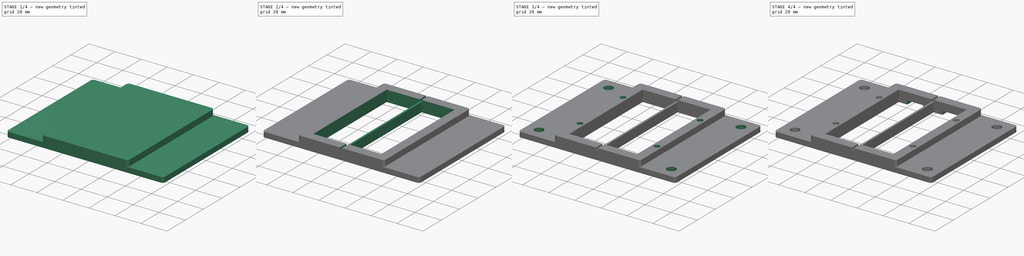
[diagram: build sequence overview — one tinted view per stage of 4, left to right]
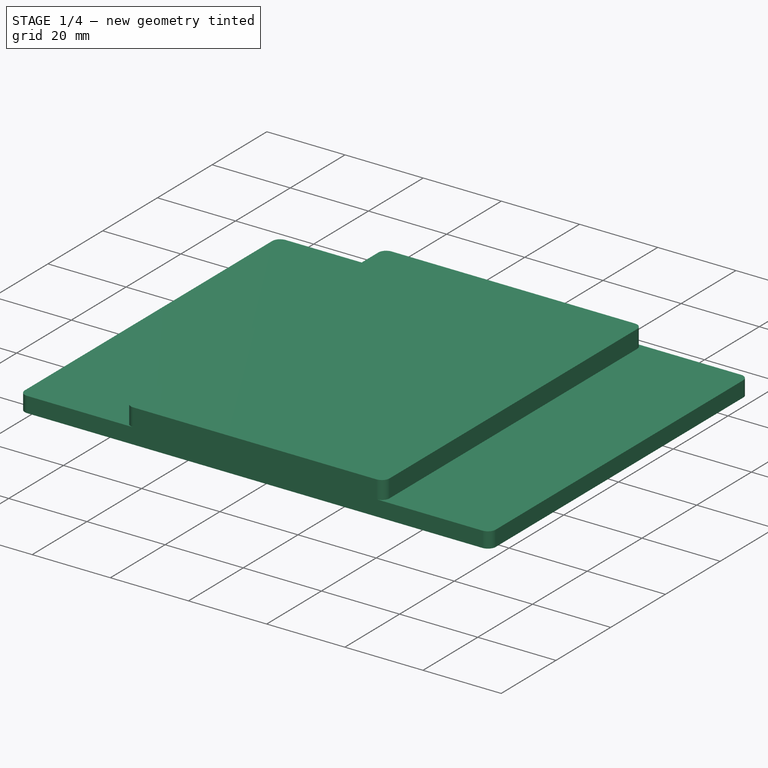
[diagram: stage 1 of 4 — iso view after this stage's code; geometry added in this stage tinted green]
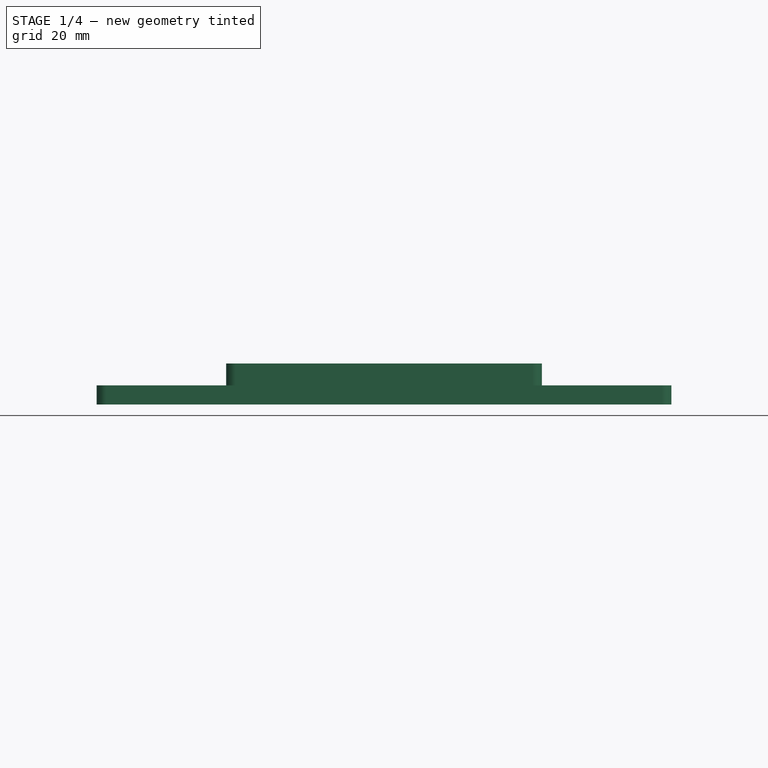
[diagram: stage 1 of 4 — front view after this stage's code; geometry added in this stage tinted green]
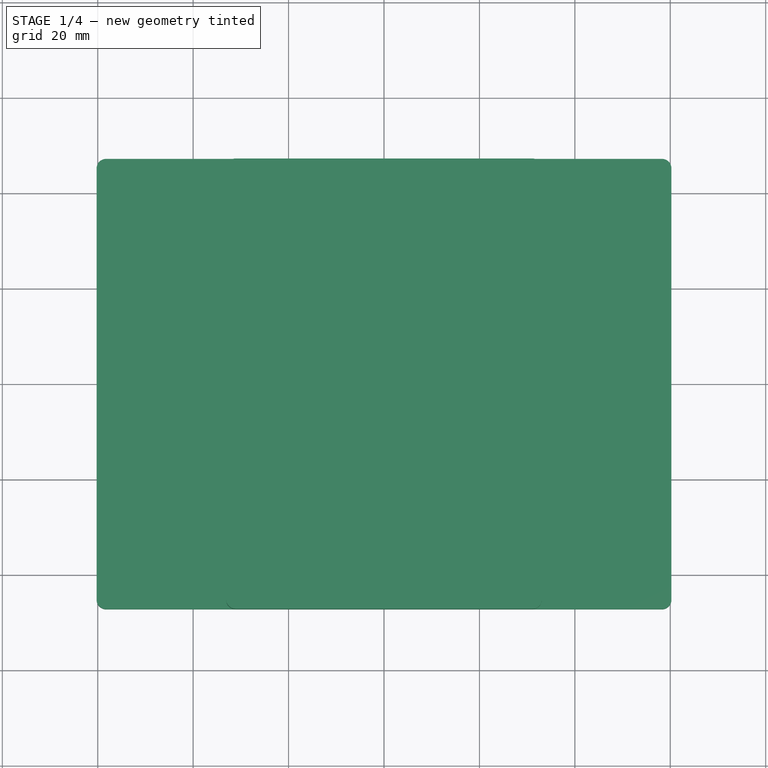
[diagram: stage 1 of 4 — top view after this stage's code; geometry added in this stage tinted green]
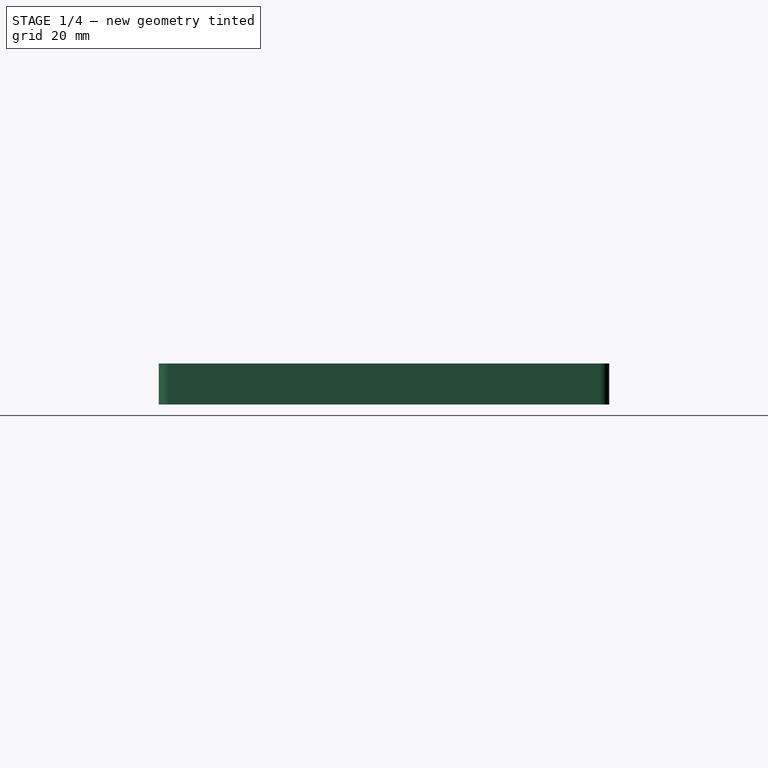
[diagram: stage 1 of 4 — right view after this stage's code; geometry added in this stage tinted green]
FCSTD DOCUMENT  (FreeCAD 1.0R39285 (Git))
Label: pupae_thermal_device_frame_v2
License: All rights reserved
LicenseURL: https://en.wikipedia.org/wiki/All_rights_reserved
objects: Sketcher::SketchObject×7, PartDesign::Pocket×5, PartDesign::Mirrored×4, PartDesign::Pad×2, PartDesign::Plane×2, Spreadsheet::Sheet×1, PartDesign::MultiTransform×1, PartDesign::Body×1
note: 48 computed .brp shape members not serialized (recipe doc carries the construction recipe); baked Part::Feature solids carry a one-line shape summary decoded from their .brp

FEATURE [Spreadsheet::Sheet] Spreadsheet
  cells = A2='Design Parameters; A3='wall_thickness; B3(wall_thickness)==7 mm; A4='floor_thickness; B4(floor_thickness)==4 mm; A6='thermal_plate_length; B6(thermal_plate_length)==80 mm; A7='thermal_plate_width; B7(thermal_plate_width)==25 mm; A8='thermal_plate_height; B8(thermal_plate_height)==5 mm; A9='thermal_plate_side_margin; B9(thermal_plate_side_margin)==0.2 mm; A10='thermal_plate_pocket_length; B10(thermal_plate_pocket_length)==thermal_plate_length + 2 * thermal_plate_side_margin; A11='thermal_plate_pocket_width; B11(thermal_plate_pocket_width)==thermal_plate_width + 2 * thermal_plate_side_margin; A12='thermal_plate_pocket_depth; B12(thermal_plate_pocket_depth)==1 * thermal_plate_height; A14='peltier_length; B14(peltier_length)==76.5 mm; A15='peltier_width; B15(peltier_width)==21 mm; A16='peltier_side_margin; B16(peltier_side_margin)==0.6 mm; A17='peltier_cable_cutout_width; B17(peltier_cable_cutout_width)==12 mm; A18='peltier_cable_cutout_height; B18(peltier_cable_cutout_height)==2.8 mm; A19='peltier_height; B19(peltier_height)==3.6 mm; A21='pupae_channel_width; B21(pupae_channel_width)==1.4 mm; A22='pupae_channel_depth; B22(pupae_channel_depth)==1.5 mm; A23='pupae_channel_pocket_depth; B23(pupae_channel_pocket_depth)==pupae_channel_depth + thermal_plate_pocket_depth - thermal_plate_height; A25='base_outside_length; B25(base_outside_length)==max(thermal_plate_pocket_length; peltier_length) + 2 * wall_thickness; A26='base_outside_width; B26(base_outside_width)==2 * wall_thickness + 2 * max(thermal_plate_pocket_width; peltier_width) + pupae_channel_width; A27='base_outside_height; B27(base_outside_height)==thermal_plate_pocket_depth + peltier_height; A28='base_outside_corner_fillet_radius; B28(base_outside_corner_fillet_radius)==2 mm; A30='thermal_plate_pocket_bottom_datum_plane_offset; B30(thermal_plate_pocket_bottom_datum_plane_offset)==base_outside_height - thermal_plate_pocket_depth; A32='front_datumplate_offset; B32(front_datumplate_offset)==0.5 * base_outside_length; A34='base_mount_screw_washer_diameter; B34(base_mount_screw_washer_diameter)==0.625 in; A35='base_mount_screw_washer_margin; B35(base_mount_screw_washer_margin)==1.5 mm; A36='base_mount_flange_hole_lengthwise_separation; B36(base_mount_flange_hole_lengthwise_separation)==3 in; A37='base_mount_flange_hole_widthwise_separation; B37(base_mount_flange_hole_widthwise_separation)==4 in; A38='base_mount_flange_width; B38(base_mount_flange_width)==max(2 * base_mount_screw_washer_diameter + 4 * base_mount_screw_washer_margin + base_outside_width; base_mount_flange_hole_widthwise_separation + base_mount_screw_washer_diameter + 2 * base_mount_screw_washer_margin); A39='base_mount_flange_length; B39(base_mount_flange_length)==base_outside_length; A40='base_mount_flange_thickness; B40(base_mount_flange_thickness)==floor_thickness; A41='base_mount_flange_fillet_radius; B41(base_mount_flange_fillet_radius)==2 mm; A43='base_mount_flange_hole_diameter; B43(base_mount_flange_hole_diameter)==0.266 in; A45='top_mount_hole_insert_diameter; B45(top_mount_hole_insert_diameter)==0.165 in; A46='top_mount_hole_insert_depth; B46(top_mount_hole_insert_depth)==7 mm
FEATURE [Sketcher::SketchObject] Sketch  label="BaseSketch"
  ArcFitTolerance = 1e-06
  AttachmentSupport = -> [XY_Plane]
  FullyConstrained = true
  MakeInternals = false
  MapMode = 5
  expr: Constraints[19] = Spreadsheet.base_outside_corner_fillet_radius
  expr: Constraints[21] = Spreadsheet.base_outside_length
  expr: Constraints[22] = Spreadsheet.base_outside_width
  sketch-geometry (10):
    g0: LineSegment StartX=-33.1 StartY=45.2 StartZ=0 EndX=-33.1 EndY=-45.2 EndZ=0
    g1: LineSegment StartX=-31.1 StartY=-47.2 StartZ=0 EndX=31.1 EndY=-47.2 EndZ=0
    g2: LineSegment StartX=33.1 StartY=-45.2 StartZ=0 EndX=33.1 EndY=45.2 EndZ=0
    g3: LineSegment StartX=31.1 StartY=47.2 StartZ=0 EndX=-31.1 EndY=47.2 EndZ=0
    g4: ArcOfCircle CenterX=-31.1 CenterY=45.2 CenterZ=0 NormalX=0 NormalY=0 NormalZ=1 AngleXU=0 Radius=2 StartAngle=1.5708 EndAngle=3.14159
    g5: ArcOfCircle CenterX=-31.1 CenterY=-45.2 CenterZ=0 NormalX=0 NormalY=0 NormalZ=1 AngleXU=0 Radius=2 StartAngle=3.14159 EndAngle=4.71239
    g6: ArcOfCircle CenterX=31.1 CenterY=-45.2 CenterZ=0 NormalX=0 NormalY=0 NormalZ=1 AngleXU=0 Radius=2 StartAngle=4.71239 EndAngle=6.28319
    g7: ArcOfCircle CenterX=31.1 CenterY=45.2 CenterZ=0 NormalX=0 NormalY=0 NormalZ=1 AngleXU=0 Radius=2 StartAngle=4e-16 EndAngle=1.5708
    g8: GeomPoint [constr] X=-33.1 Y=47.2 Z=0
    g9: GeomPoint [constr] X=33.1 Y=-47.2 Z=0
  constraints (23):
    c: Tangent(g0,g4) = -1.5708
    c: Tangent(g0,g5) = -1.5708
    c: Tangent(g1,g5) = -1.5708
    c: Tangent(g1,g6) = -1.5708
    c: Tangent(g2,g6) = -1.5708
    c: Tangent(g2,g7) = -1.5708
    c: Tangent(g3,g7) = -1.5708
    c: Tangent(g3,g4) = -1.5708
    c: Vertical(g0)
    c: Vertical(g2)
    c: Horizontal(g1)
    c: Horizontal(g3)
    c: Equal(g4,g5)
    c: Equal(g5,g6)
    c: Equal(g6,g7)
    c: PointOnObject(g8,g0)
    c: PointOnObject(g8,g3)
    c: PointOnObject(g9,g1)
    c: PointOnObject(g9,g2)
    c: Radius(g5) = 2
    c: Symmetric(g4,g6,g-1)
    c: DistanceY(g1,g3) = 94.4
    c: DistanceX(g0,g2) = 66.2
FEATURE [PartDesign::Pad] Pad  label="BasePad"
  Direction = (0,0,1)
  Length = 8.6
  Length2 = 10
  Profile = -> Sketch
  ReferenceAxis = -> Sketch [N_Axis]
  Refine = true
  Suppressed = false
  Type = 0
  expr: Length = Spreadsheet.base_outside_height
FEATURE [PartDesign::Plane] DatumPlane  label="TopDatumPlane"
  AttachmentOffset = pos=(0,0,8.6) rot=(0,0,1;0rad)
  AttachmentSupport = -> [XY_Plane]
  Length = 141.804
  MapMode = 5
  Placement = pos=(0,0,8.6) rot=(0,0,1;0rad)
  ResizeMode = 0
  Width = 115.729
  expr: .AttachmentOffset.Base.z = Spreadsheet.base_outside_height
FEATURE [Sketcher::SketchObject] Sketch002  label="PupaeChannelSketch"
  ArcFitTolerance = 1e-06
  AttachmentSupport = -> [DatumPlane]
  FullyConstrained = true
  MakeInternals = false
  MapMode = 5
  Placement = pos=(0,0,8.6) rot=(0,0,1;0rad)
  expr: Constraints[10] = Spreadsheet.pupae_channel_width
  expr: Constraints[11] = Spreadsheet.base_outside_length
  sketch-geometry (5):
    g0: LineSegment StartX=-0.7 StartY=47.2 StartZ=0 EndX=-0.7 EndY=-47.2 EndZ=0
    g1: LineSegment StartX=-0.7 StartY=-47.2 StartZ=0 EndX=0.7 EndY=-47.2 EndZ=0
    g2: LineSegment StartX=0.7 StartY=-47.2 StartZ=0 EndX=0.7 EndY=47.2 EndZ=0
    g3: LineSegment StartX=0.7 StartY=47.2 StartZ=0 EndX=-0.7 EndY=47.2 EndZ=0
    g4: GeomPoint [constr] X=0 Y=0 Z=0
  constraints (12):
    c: Coincident(g0,g1)
    c: Coincident(g1,g2)
    c: Coincident(g2,g3)
    c: Coincident(g3,g0)
    c: Vertical(g0)
    c: Vertical(g2)
    c: Horizontal(g1)
    c: Horizontal(g3)
    c: Symmetric(g2,g0,g4)
    c: Coincident(g4,g-1)
    c: DistanceX(g1,g1) = 1.4
    c: DistanceY(g2,g2) = 94.4
FEATURE [Sketcher::SketchObject] Sketch003  label="ThermalPlatePocketSketch"
  ArcFitTolerance = 1e-06
  AttachmentSupport = -> [DatumPlane]
  FullyConstrained = true
  MakeInternals = false
  MapMode = 5
  Placement = pos=(0,0,8.6) rot=(0,0,1;0rad)
  expr: Constraints[12] = Spreadsheet.thermal_plate_pocket_width
  expr: Constraints[13] = Spreadsheet.thermal_plate_pocket_length
  expr: Constraints[2] = Spreadsheet.pupae_channel_width
  sketch-geometry (5):
    g0: LineSegment [constr] StartX=-0.7 StartY=0 StartZ=0 EndX=0.7 EndY=0 EndZ=0
    g1: LineSegment StartX=-26.1 StartY=40.2 StartZ=0 EndX=-26.1 EndY=-40.2 EndZ=0
    g2: LineSegment StartX=-26.1 StartY=-40.2 StartZ=0 EndX=-0.7 EndY=-40.2 EndZ=0
    g3: LineSegment StartX=-0.7 StartY=-40.2 StartZ=0 EndX=-0.7 EndY=40.2 EndZ=0
    g4: LineSegment StartX=-0.7 StartY=40.2 StartZ=0 EndX=-26.1 EndY=40.2 EndZ=0
  constraints (14):
    c: Symmetric(g0,g0,g-1)
    c: Horizontal(g0)
    c: Distance(g0,g0) = 1.4
    c: Coincident(g1,g2)
    c: Coincident(g2,g3)
    c: Coincident(g3,g4)
    c: Coincident(g4,g1)
    c: Vertical(g1)
    c: Vertical(g3)
    c: Horizontal(g2)
    c: Horizontal(g4)
    c: Symmetric(g3,g2,g0)
    c: Distance(g4,g4) = 25.4
    c: DistanceY(g1,g1) = 80.4
FEATURE [PartDesign::Plane] DatumPlane001  label="ThermPlatePocketBottomDatumPlane"
  AttachmentOffset = pos=(0,0,3.6) rot=(0,0,1;0rad)
  AttachmentSupport = -> [XY_Plane]
  Length = 141.804
  MapMode = 5
  Placement = pos=(0,0,3.6) rot=(0,0,1;0rad)
  ResizeMode = 0
  Width = 115.729
  expr: .AttachmentOffset.Base.z = Spreadsheet.thermal_plate_pocket_bottom_datum_plane_offset
FEATURE [Sketcher::SketchObject] Sketch007  label="BaseMountFlangeSketch"
  ArcFitTolerance = 1e-06
  AttachmentSupport = -> [XY_Plane]
  FullyConstrained = true
  MakeInternals = false
  MapMode = 5
  expr: Constraints[19] = Spreadsheet.base_mount_flange_fillet_radius
  expr: Constraints[20] = Spreadsheet.base_mount_flange_width
  expr: Constraints[21] = Spreadsheet.base_mount_flange_length
  sketch-geometry (10):
    g0: LineSegment StartX=-60.2375 StartY=45.2 StartZ=0 EndX=-60.2375 EndY=-45.2 EndZ=0
    g1: LineSegment StartX=-58.2375 StartY=-47.2 StartZ=0 EndX=58.2375 EndY=-47.2 EndZ=0
    g2: LineSegment StartX=60.2375 StartY=-45.2 StartZ=0 EndX=60.2375 EndY=45.2 EndZ=0
    g3: LineSegment StartX=58.2375 StartY=47.2 StartZ=0 EndX=-58.2375 EndY=47.2 EndZ=0
    g4: ArcOfCircle CenterX=-58.2375 CenterY=45.2 CenterZ=0 NormalX=0 NormalY=0 NormalZ=1 AngleXU=0 Radius=2 StartAngle=1.5708 EndAngle=3.14159
    g5: ArcOfCircle CenterX=-58.2375 CenterY=-45.2 CenterZ=0 NormalX=0 NormalY=0 NormalZ=1 AngleXU=0 Radius=2 StartAngle=3.14159 EndAngle=4.71239
    g6: ArcOfCircle CenterX=58.2375 CenterY=-45.2 CenterZ=0 NormalX=0 NormalY=0 NormalZ=1 AngleXU=0 Radius=2 StartAngle=4.71239 EndAngle=6.28319
    g7: ArcOfCircle CenterX=58.2375 CenterY=45.2 CenterZ=0 NormalX=0 NormalY=0 NormalZ=1 AngleXU=0 Radius=2 StartAngle=-9e-16 EndAngle=1.5708
    g8: GeomPoint [constr] X=-60.2375 Y=47.2 Z=0
    g9: GeomPoint [constr] X=60.2375 Y=-47.2 Z=0
  constraints (23):
    c: Tangent(g0,g4) = -1.5708
    c: Tangent(g0,g5) = -1.5708
    c: Tangent(g1,g5) = -1.5708
    c: Tangent(g1,g6) = -1.5708
    c: Tangent(g2,g6) = -1.5708
    c: Tangent(g2,g7) = -1.5708
    c: Tangent(g3,g7) = -1.5708
    c: Tangent(g3,g4) = -1.5708
    c: Vertical(g0)
    c: Vertical(g2)
    c: Horizontal(g1)
    c: Horizontal(g3)
    c: Equal(g4,g5)
    c: Equal(g5,g6)
    c: Equal(g6,g7)
    c: PointOnObject(g8,g0)
    c: PointOnObject(g8,g3)
    c: PointOnObject(g9,g1)
    c: PointOnObject(g9,g2)
    c: Radius(g5) = 2
    c: DistanceX(g0,g2) = 120.475
    c: DistanceY(g1,g3) = 94.4
    c: Symmetric(g4,g6,g-1)
FEATURE [PartDesign::Pad] Pad001  label="BaseMountFlangePad"
  BaseFeature = -> Pad
  Direction = (0,0,1)
  Length = 4
  Length2 = 10
  Profile = -> Sketch007
  ReferenceAxis = -> Sketch007 [N_Axis]
  Refine = true
  Suppressed = false
  Type = 0
  expr: Length = Spreadsheet.base_mount_flange_thickness
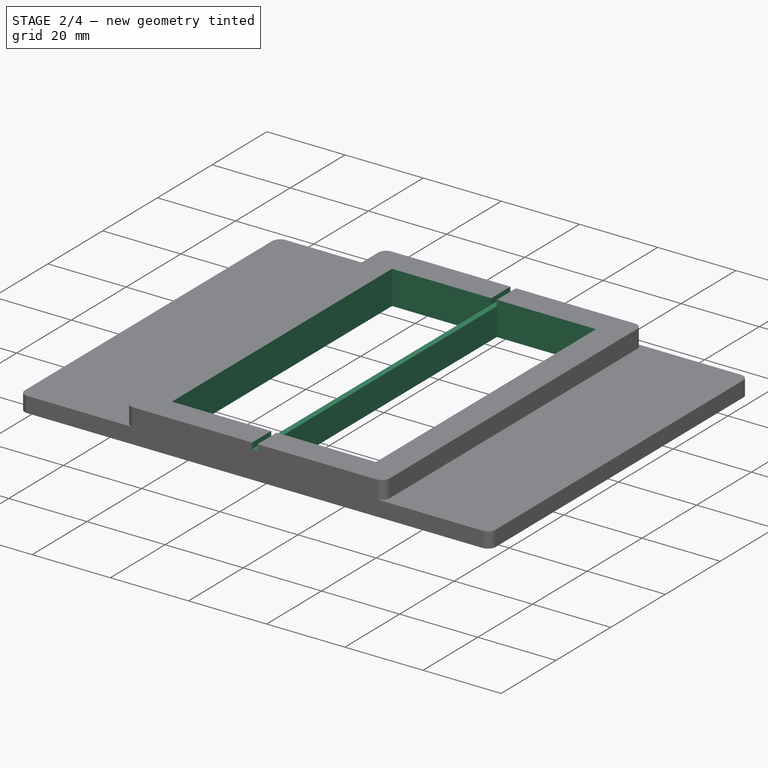
[diagram: stage 2 of 4 — iso view after this stage's code; geometry added in this stage tinted green]
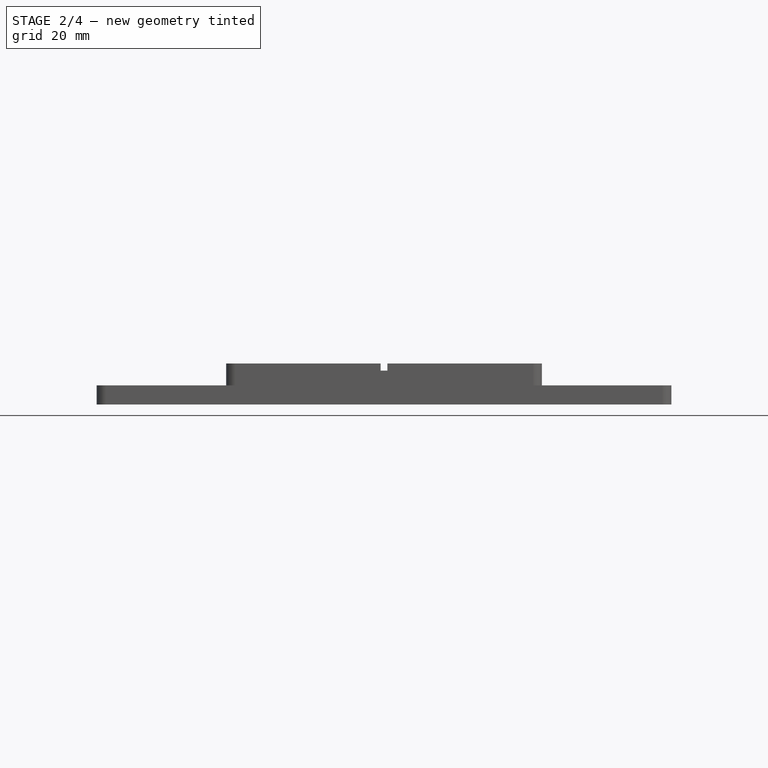
[diagram: stage 2 of 4 — front view after this stage's code; geometry added in this stage tinted green]
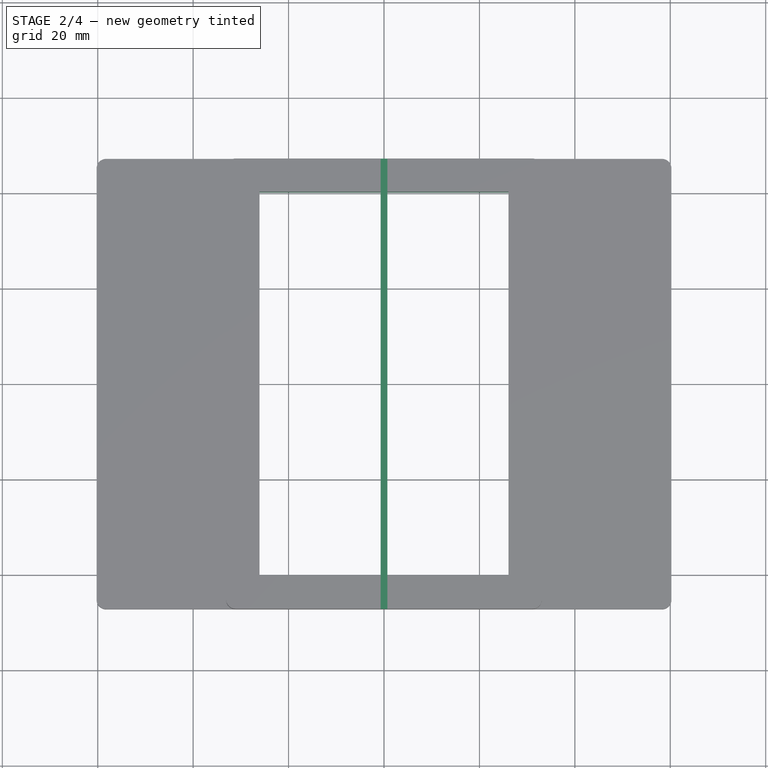
[diagram: stage 2 of 4 — top view after this stage's code; geometry added in this stage tinted green]
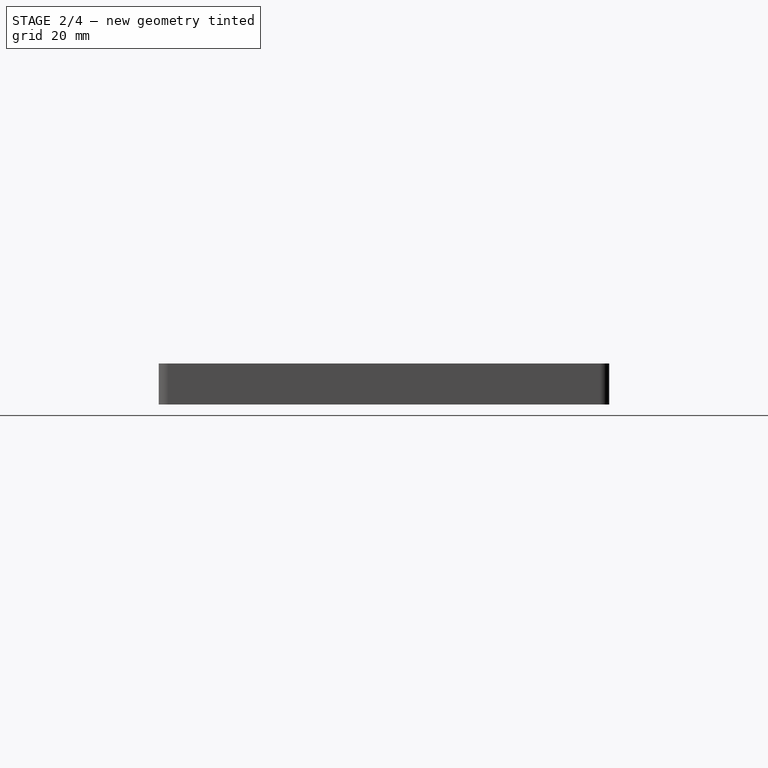
[diagram: stage 2 of 4 — right view after this stage's code; geometry added in this stage tinted green]
FEATURE [PartDesign::Pocket] Pocket001  label="PupaeChannelPocket"
  BaseFeature = -> Pad001
  Direction = (0,0,-1)
  Length = 1.5
  Length2 = 5
  Profile = -> Sketch002
  ReferenceAxis = -> Sketch002 [N_Axis]
  Refine = true
  Suppressed = false
  Type = 0
  expr: Length = Spreadsheet.pupae_channel_pocket_depth
FEATURE [PartDesign::Pocket] Pocket  label="ThermalPlatePocket"
  BaseFeature = -> Pocket001
  Direction = (0,0,-1)
  Length = 8.6
  Length2 = 5
  Profile = -> Sketch003
  ReferenceAxis = -> Sketch003 [N_Axis]
  Refine = true
  Suppressed = false
  Type = 0
  expr: Length = Spreadsheet.base_outside_height
FEATURE [PartDesign::Mirrored] Mirrored  label="ThermalPlatePocketMirrored"
  BaseFeature = -> Pocket
  MirrorPlane = -> Sketch003 [V_Axis]
  Originals = -> [Pocket]
  Refine = true
  Suppressed = false
  TransformMode = 0
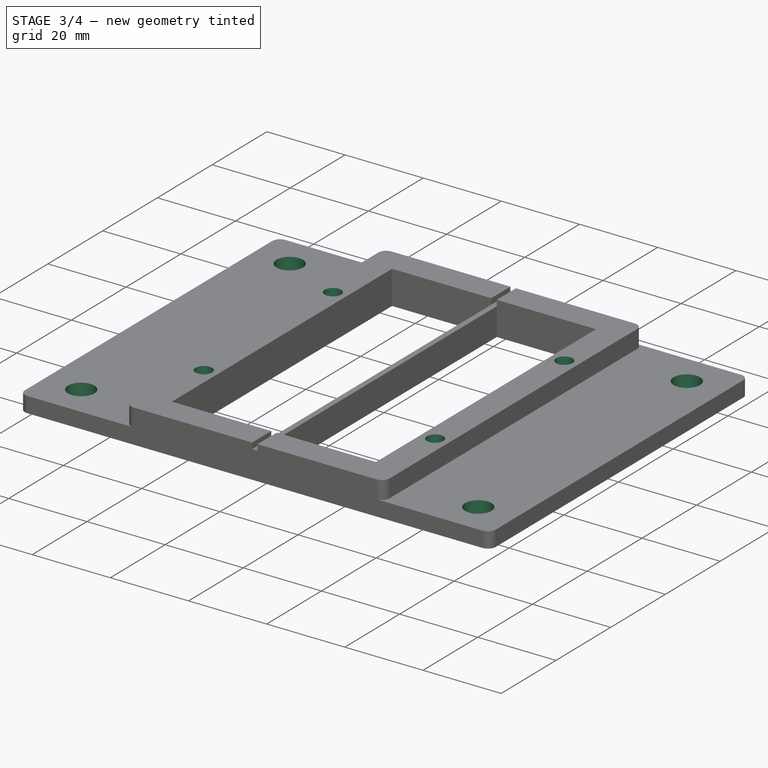
[diagram: stage 3 of 4 — iso view after this stage's code; geometry added in this stage tinted green]
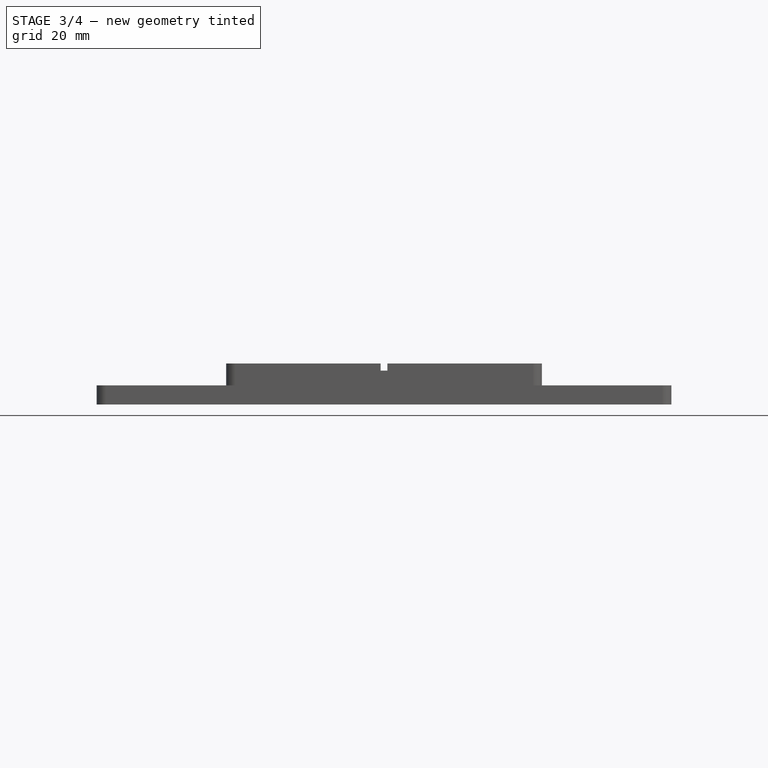
[diagram: stage 3 of 4 — front view after this stage's code; geometry added in this stage tinted green]
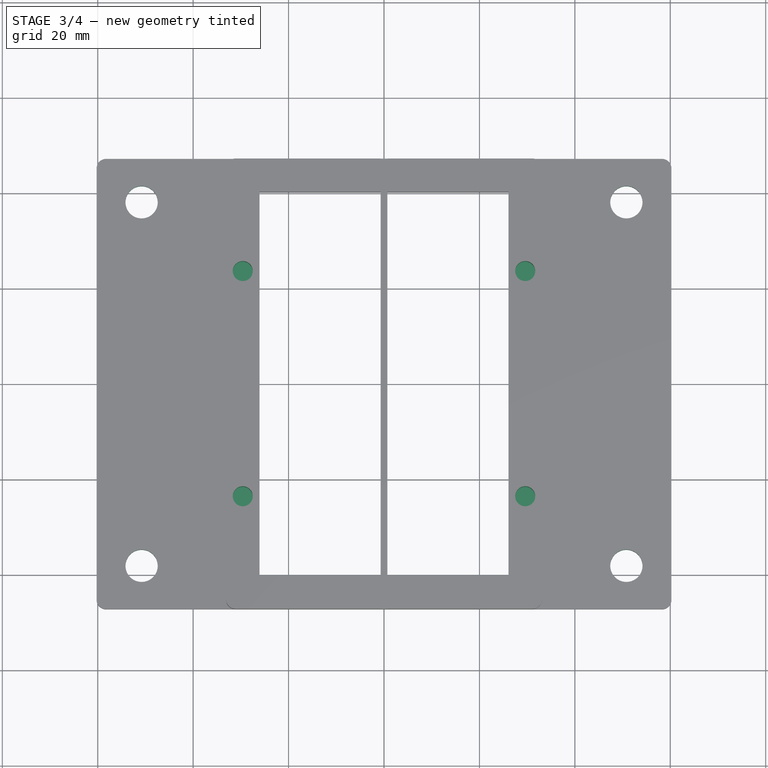
[diagram: stage 3 of 4 — top view after this stage's code; geometry added in this stage tinted green]
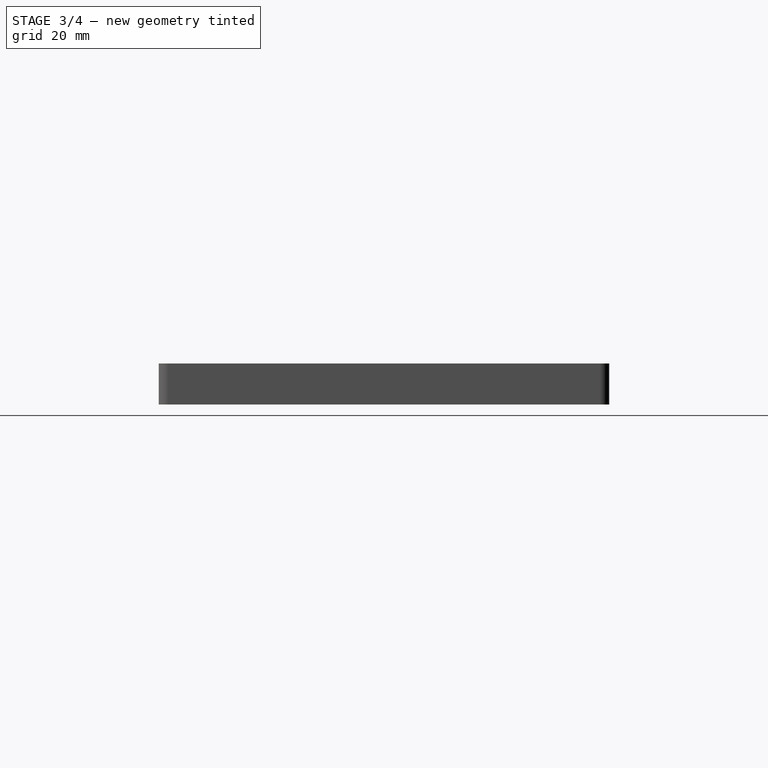
[diagram: stage 3 of 4 — right view after this stage's code; geometry added in this stage tinted green]
FEATURE [Sketcher::SketchObject] Sketch008  label="TopMountHoleSketch"
  ArcFitTolerance = 1e-06
  AttachmentSupport = -> [DatumPlane]
  FullyConstrained = true
  MakeInternals = false
  MapMode = 5
  Placement = pos=(0,0,8.6) rot=(0,0,1;0rad)
  expr: Constraints[18] = Spreadsheet.wall_thickness
  expr: Constraints[32] = Spreadsheet.top_mount_hole_insert_diameter
  expr: Constraints[3] = Spreadsheet.base_outside_length
  expr: Constraints[5] = Spreadsheet.base_outside_width
  expr: Constraints[9] = Spreadsheet.wall_thickness
  sketch-geometry (17):
    g0: LineSegment [constr] StartX=-33.1 StartY=47.2 StartZ=0 EndX=33.1 EndY=47.2 EndZ=0
    g1: LineSegment [constr] StartX=0 StartY=47.2 StartZ=0 EndX=0 EndY=-47.2 EndZ=0
    g2: GeomPoint [constr] X=-16.55 Y=47.2 Z=0
    g3: LineSegment [constr] StartX=-16.55 StartY=47.2 StartZ=0 EndX=-16.55 EndY=40.2 EndZ=0
    g4: GeomPoint [constr] X=-16.55 Y=43.7 Z=0
    g5: LineSegment [constr] StartX=-33.1 StartY=47.2 StartZ=0 EndX=-33.1 EndY=-47.2 EndZ=0
    g6: GeomPoint [constr] X=-33.1 Y=-4e-16 Z=0
    g7: GeomPoint [constr] X=-33.1 Y=23.6 Z=0
    g8: LineSegment [constr] StartX=-33.1 StartY=23.6 StartZ=0 EndX=-26.1 EndY=23.6 EndZ=0
    g9: GeomPoint [constr] X=-29.6 Y=23.6 Z=0
    g10: Circle CenterX=-29.6 CenterY=23.6 CenterZ=0 NormalX=0 NormalY=0 NormalZ=1 AngleXU=0 Radius=2.0955
    g11: GeomPoint X=-24.825 Y=47.2 Z=0
    g12: LineSegment [constr] StartX=-24.825 StartY=47.2 StartZ=0 EndX=-24.825 EndY=40.2 EndZ=0
    g13: GeomPoint [constr] X=-24.825 Y=43.7 Z=0
    g14: GeomPoint [constr] X=-6.498 Y=47.2 Z=0
    g15: LineSegment [constr] StartX=-6.498 StartY=47.2 StartZ=0 EndX=-6.498 EndY=40.2 EndZ=0
    g16: GeomPoint [constr] X=-6.498 Y=43.7 Z=0
  constraints (33):
    c: Horizontal(g0)
    c: Vertical(g1)
    c: Symmetric(g1,g1,g-1)
    c: DistanceY(g1,g1) = 94.4
    c: Symmetric(g0,g0,g1)
    c: DistanceX(g0,g0) = 66.2
    c: Symmetric(g0,g1,g2)
    c: Coincident(g3,g2)
    c: Vertical(g3)
    c: Distance(g3,g3) = 7
    c: Symmetric(g3,g2,g4)
    c: Vertical(g5)
    c: Coincident(g5,g0)
    c: Equal(g5,g1)
    c: Symmetric(g0,g5,g6)
    c: Symmetric(g0,g6,g7)
    c: Coincident(g8,g7)
    c: Horizontal(g8)
    c: Distance(g8,g8) = 7
    c: Symmetric(g7,g8,g9)
    c: Coincident(g10,g9)
    c: Symmetric(g0,g2,g11)
    c: Coincident(g12,g11)
    c: Vertical(g12)
    c: Equal(g12,g3)
    c: Symmetric(g11,g12,g13)
    c: Coincident(g15,g14)
    c: Vertical(g15)
    c: Equal(g3,g15)
    c: Symmetric(g14,g15,g16)
    c: PointOnObject(g14,g0)
    c: Distance(g14,g1) = 6.498
    c: Diameter(g10) = 4.191
FEATURE [PartDesign::Mirrored] Mirrored004
  MirrorPlane = -> YZ_Plane
  Refine = true
  Suppressed = false
  TransformMode = 0
FEATURE [PartDesign::Mirrored] Mirrored005
  MirrorPlane = -> XZ_Plane
  Refine = true
  Suppressed = false
  TransformMode = 0
FEATURE [Sketcher::SketchObject] Sketch009  label="BaseFlangeMountHoleSketch"
  ArcFitTolerance = 1e-06
  AttachmentSupport = -> [XY_Plane]
  FullyConstrained = true
  MakeInternals = false
  MapMode = 5
  expr: Constraints[10] = Spreadsheet.base_mount_flange_hole_widthwise_separation
  expr: Constraints[11] = Spreadsheet.base_mount_flange_hole_lengthwise_separation
  expr: Constraints[19] = Spreadsheet.base_mount_flange_hole_diameter
  sketch-geometry (9):
    g0: LineSegment [constr] StartX=-50.8 StartY=38.1 StartZ=0 EndX=-50.8 EndY=-38.1 EndZ=0
    g1: LineSegment [constr] StartX=-50.8 StartY=-38.1 StartZ=0 EndX=50.8 EndY=-38.1 EndZ=0
    g2: LineSegment [constr] StartX=50.8 StartY=-38.1 StartZ=0 EndX=50.8 EndY=38.1 EndZ=0
    g3: LineSegment [constr] StartX=50.8 StartY=38.1 StartZ=0 EndX=-50.8 EndY=38.1 EndZ=0
    g4: GeomPoint [constr] X=0 Y=0 Z=0
    g5: Circle CenterX=-50.8 CenterY=38.1 CenterZ=0 NormalX=0 NormalY=0 NormalZ=1 AngleXU=0 Radius=3.3782
    g6: Circle CenterX=50.8 CenterY=38.1 CenterZ=0 NormalX=0 NormalY=0 NormalZ=1 AngleXU=0 Radius=3.3782
    g7: Circle CenterX=-50.8 CenterY=-38.1 CenterZ=0 NormalX=0 NormalY=0 NormalZ=1 AngleXU=0 Radius=3.3782
    g8: Circle CenterX=50.8 CenterY=-38.1 CenterZ=0 NormalX=0 NormalY=0 NormalZ=1 AngleXU=0 Radius=3.3782
  constraints (20):
    c: Coincident(g0,g1)
    c: Coincident(g1,g2)
    c: Coincident(g2,g3)
    c: Coincident(g3,g0)
    c: Vertical(g0)
    c: Vertical(g2)
    c: Horizontal(g1)
    c: Horizontal(g3)
    c: Symmetric(g2,g0,g4)
    c: Coincident(g4,g-1)
    c: DistanceX(g3,g3) = 101.6
    c: DistanceY(g2,g2) = 76.2
    c: Coincident(g5,g0)
    c: Coincident(g6,g2)
    c: Coincident(g7,g0)
    c: Coincident(g8,g1)
    c: Equal(g5,g7)
    c: Equal(g7,g6)
    c: Equal(g6,g8)
    c: Diameter(g5) = 6.7564
FEATURE [Sketcher::SketchObject] Sketch010  label="CableCutoutSketch"
  ArcFitTolerance = 1e-06
  AttachmentSupport = -> [XY_Plane]
  FullyConstrained = true
  MakeInternals = false
  MapMode = 5
  expr: Constraints[12] = Spreadsheet.pupae_channel_width
  expr: Constraints[13] = Spreadsheet.thermal_plate_pocket_length
  expr: Constraints[14] = Spreadsheet.thermal_plate_pocket_width
  expr: Constraints[25] = Spreadsheet.base_mount_flange_width
  expr: Constraints[26] = Spreadsheet.base_mount_flange_length
  expr: Constraints[37] = Spreadsheet.peltier_cable_cutout_width
  sketch-geometry (17):
    g0: LineSegment [constr] StartX=-0.7 StartY=0 StartZ=0 EndX=0.7 EndY=0 EndZ=0
    g1: LineSegment [constr] StartX=-26.1 StartY=40.2 StartZ=0 EndX=-26.1 EndY=-40.2 EndZ=0
    g2: LineSegment [constr] StartX=-26.1 StartY=-40.2 StartZ=0 EndX=-0.7 EndY=-40.2 EndZ=0
    g3: LineSegment [constr] StartX=-0.7 StartY=-40.2 StartZ=0 EndX=-0.7 EndY=40.2 EndZ=0
    g4: LineSegment [constr] StartX=-0.7 StartY=40.2 StartZ=0 EndX=-26.1 EndY=40.2 EndZ=0
    g5: GeomPoint [constr] X=-13.4 Y=3e-16 Z=0
    g6: LineSegment [constr] StartX=-60.2375 StartY=47.2 StartZ=0 EndX=-60.2375 EndY=-47.2 EndZ=0
    g7: LineSegment [constr] StartX=-60.2375 StartY=-47.2 StartZ=0 EndX=60.2375 EndY=-47.2 EndZ=0
    g8: LineSegment [constr] StartX=60.2375 StartY=-47.2 StartZ=0 EndX=60.2375 EndY=47.2 EndZ=0
    g9: LineSegment [constr] StartX=60.2375 StartY=47.2 StartZ=0 EndX=-60.2375 EndY=47.2 EndZ=0
    g10: GeomPoint [constr] X=0 Y=0 Z=0
    g11: GeomPoint [constr] X=-13.4 Y=3e-16 Z=0
    g12: LineSegment StartX=-19.4 StartY=47.2 StartZ=0 EndX=-19.4 EndY=40.2 EndZ=0
    g13: LineSegment StartX=-19.4 StartY=40.2 StartZ=0 EndX=-7.4 EndY=40.2 EndZ=0
    g14: LineSegment StartX=-7.4 StartY=40.2 StartZ=0 EndX=-7.4 EndY=47.2 EndZ=0
    g15: LineSegment StartX=-7.4 StartY=47.2 StartZ=0 EndX=-19.4 EndY=47.2 EndZ=0
    g16: GeomPoint X=-13.4 Y=40.2 Z=0
  constraints (40):
    c: Horizontal(g0)
    c: Symmetric(g0,g0,g-1)
    c: Coincident(g1,g2)
    c: Coincident(g2,g3)
    c: Coincident(g3,g4)
    c: Coincident(g4,g1)
    c: Vertical(g1)
    c: Vertical(g3)
    c: Horizontal(g2)
    c: Horizontal(g4)
    c: Symmetric(g3,g1,g5)
    c: Symmetric(g3,g2,g0)
    c: Distance(g0,g0) = 1.4
    c: DistanceY(g1,g1) = 80.4
    c: DistanceX(g4,g4) = 25.4
    c: Coincident(g6,g7)
    c: Coincident(g7,g8)
    c: Coincident(g8,g9)
    c: Coincident(g9,g6)
    c: Vertical(g6)
    c: Vertical(g8)
    c: Horizontal(g7)
    c: Horizontal(g9)
    c: Symmetric(g8,g6,g10)
    c: Coincident(g10,g-1)
    c: DistanceX(g9,g9) = 120.475
    c: DistanceY(g8,g8) = 94.4
    c: Coincident(g11,g5)
    c: Coincident(g12,g13)
    c: Coincident(g13,g14)
    c: Coincident(g14,g15)
    c: Coincident(g15,g12)
    c: Vertical(g12)
    c: Vertical(g14)
    c: Horizontal(g13)
    c: Horizontal(g15)
    c: PointOnObject(g14,g9)
    c: DistanceX(g15,g15) = 12
    c: Symmetric(g1,g3,g16)
    c: Symmetric(g12,g13,g16)
FEATURE [PartDesign::Pocket] Pocket008  label="BaseFlangeMountHolePocketPocket008"
  BaseFeature = -> Mirrored
  Direction = (0,0,-1)
  Length = 5
  Length2 = 5
  Profile = -> Sketch009
  ReferenceAxis = -> Sketch009 [N_Axis]
  Refine = true
  Reversed = true
  Suppressed = false
  Type = 1
FEATURE [PartDesign::Pocket] Pocket005  label="TopMountHolePocket"
  BaseFeature = -> Pocket008
  Direction = (0,0,-1)
  Length = 7
  Length2 = 5
  Profile = -> Sketch008
  ReferenceAxis = -> Sketch008 [N_Axis]
  Refine = true
  Suppressed = false
  Type = 0
  expr: Length = Spreadsheet.top_mount_hole_insert_depth
FEATURE [PartDesign::MultiTransform] MultiTransform  label="TopMountHoleMultiTransform"
  BaseFeature = -> Pocket005
  Originals = -> [Pocket005]
  Refine = true
  Suppressed = false
  TransformMode = 0
  Transformations = -> [Mirrored004,Mirrored005]
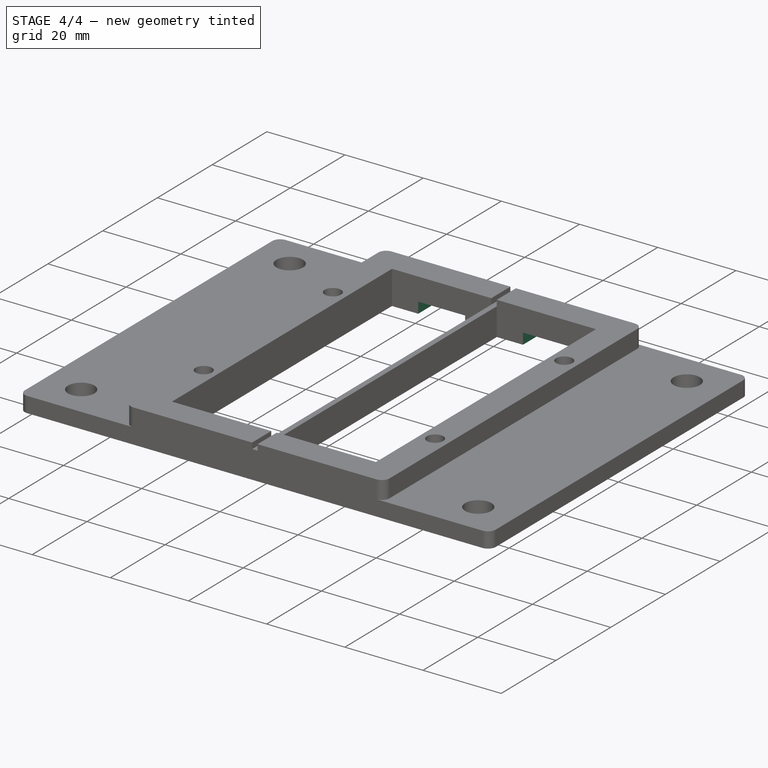
[diagram: stage 4 of 4 — iso view after this stage's code; geometry added in this stage tinted green]
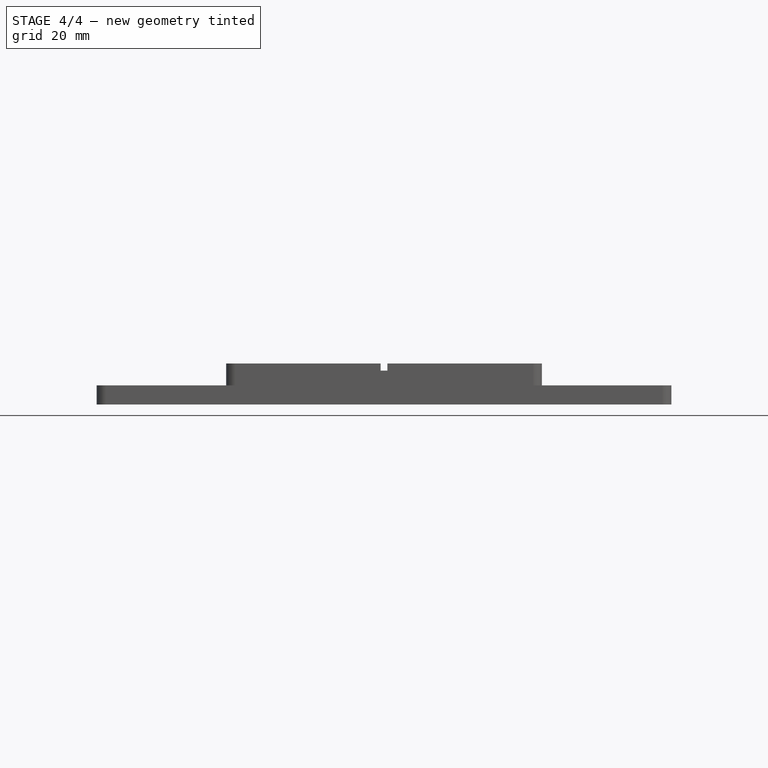
[diagram: stage 4 of 4 — front view after this stage's code; geometry added in this stage tinted green]
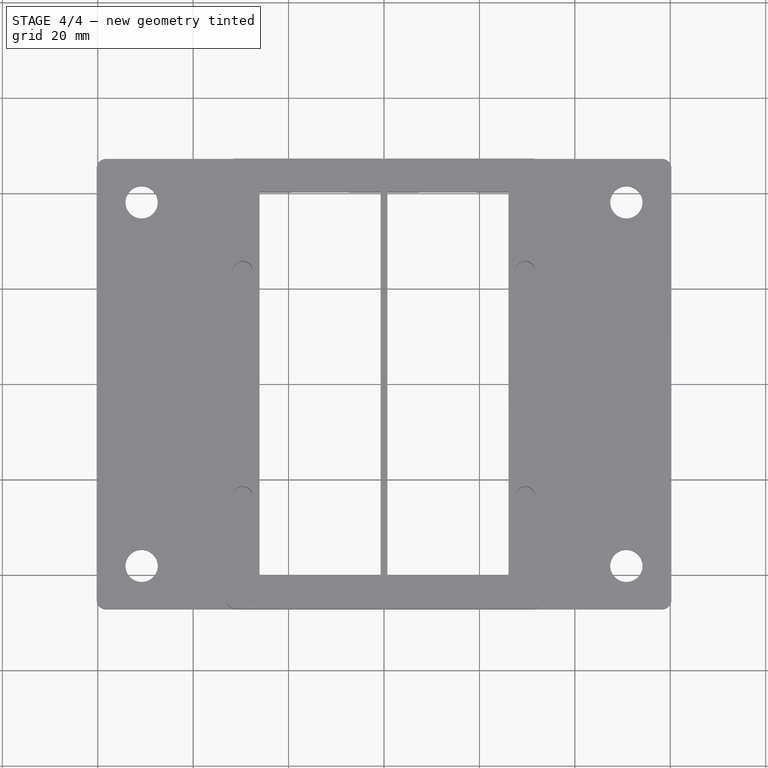
[diagram: stage 4 of 4 — top view after this stage's code; geometry added in this stage tinted green]
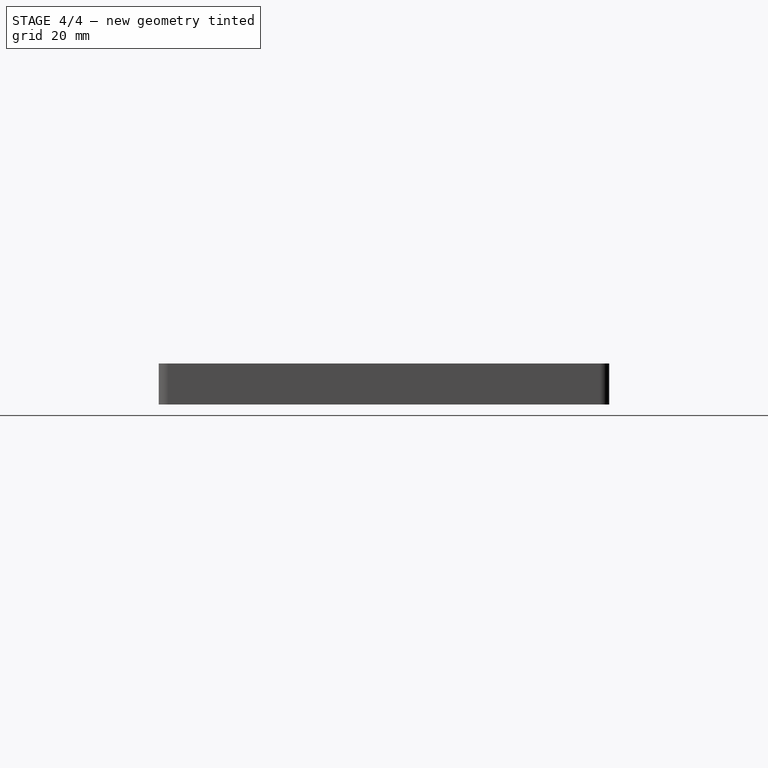
[diagram: stage 4 of 4 — right view after this stage's code; geometry added in this stage tinted green]
FEATURE [PartDesign::Pocket] Pocket007  label="CableCutoutPocket"
  BaseFeature = -> MultiTransform
  Direction = (0,0,-1)
  Length = 2.8
  Length2 = 5
  Profile = -> Sketch010
  ReferenceAxis = -> Sketch010 [N_Axis]
  Refine = true
  Reversed = true
  Suppressed = false
  Type = 0
  expr: Length = Spreadsheet.peltier_cable_cutout_height
FEATURE [PartDesign::Mirrored] Mirrored006  label="CableCutoutMirrored"
  BaseFeature = -> Pocket007
  MirrorPlane = -> Sketch010 [V_Axis]
  Originals = -> [Pocket007]
  Refine = true
  Suppressed = false
  TransformMode = 0
FEATURE [PartDesign::Body] Body
  AllowCompound = false
  Group = -> [Sketch,Pad,DatumPlane,Sketch002,Sketch007,Pad001,Pocket001,Sketch003,Pocket,Mirrored,DatumPlane001,Sketch008,Sketch009,Pocket008,Pocket005,MultiTransform,Mirrored004,Mirrored005,Sketch010,Pocket007,Mirrored006]
  Origin = -> Origin
  Tip = -> Mirrored006
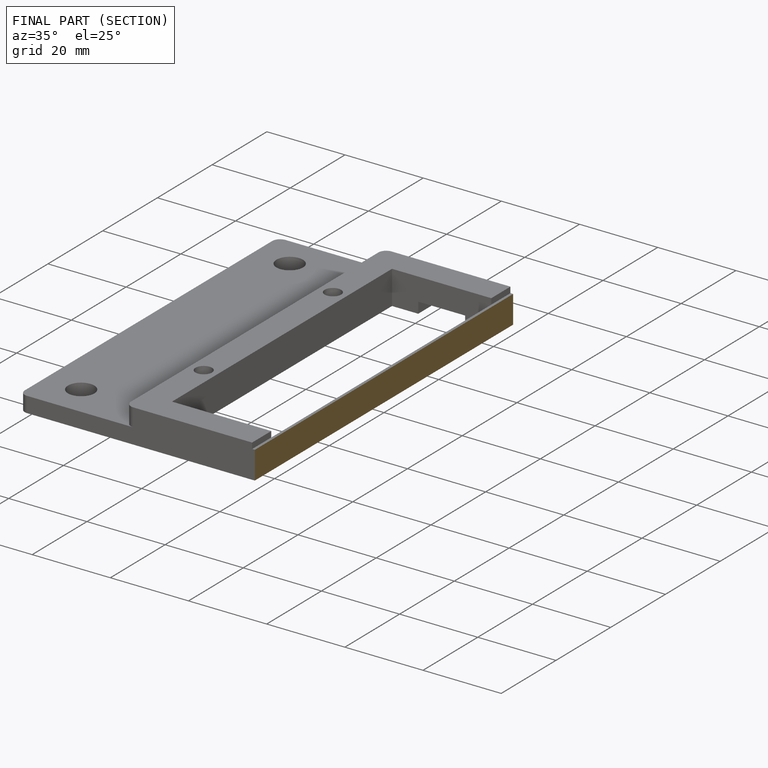
[diagram: finished part — half-section view (interior)]
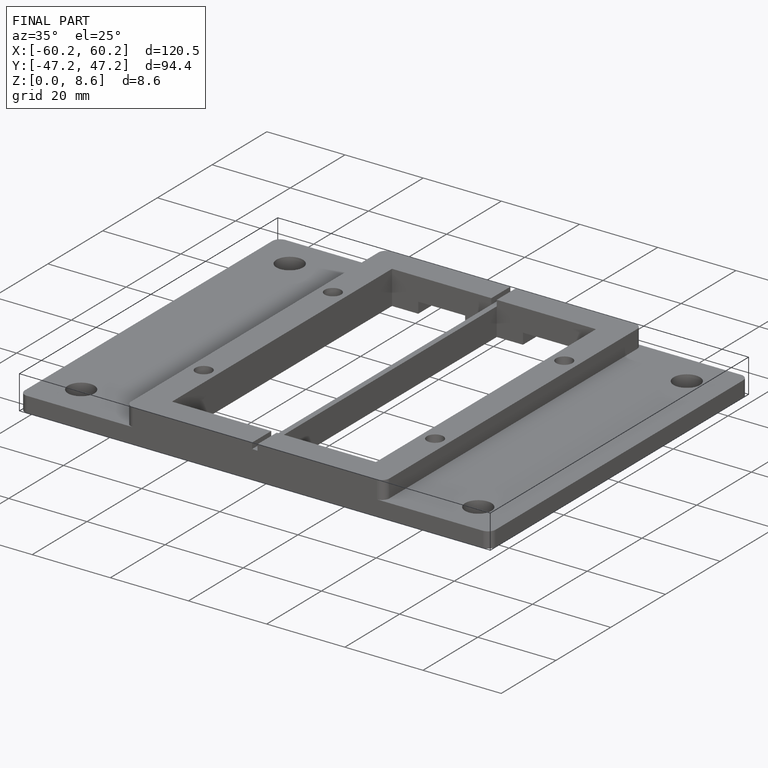
[diagram: finished part — iso view with bounding-box wireframe]
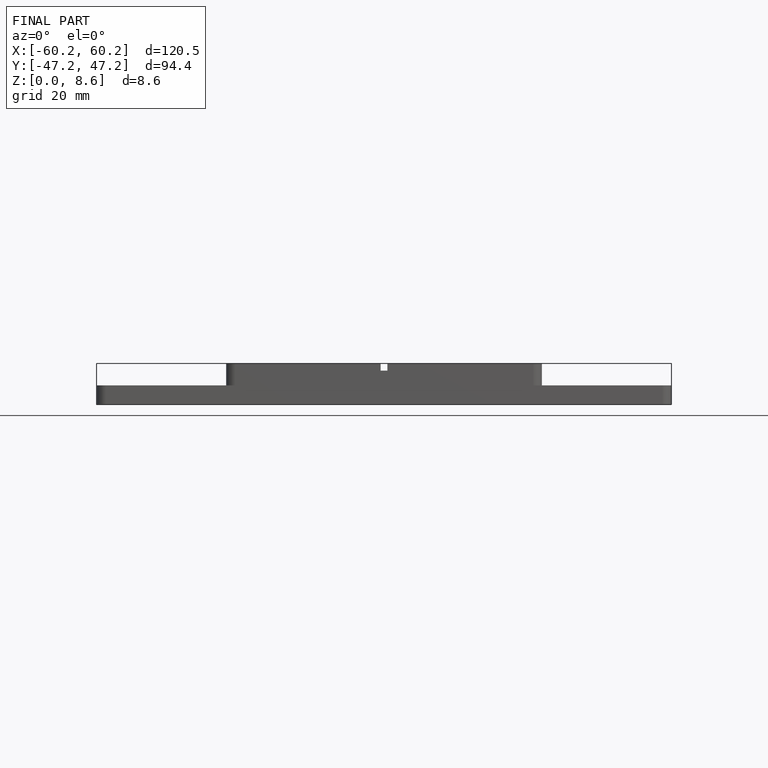
[diagram: finished part — front view with bounding-box wireframe]
